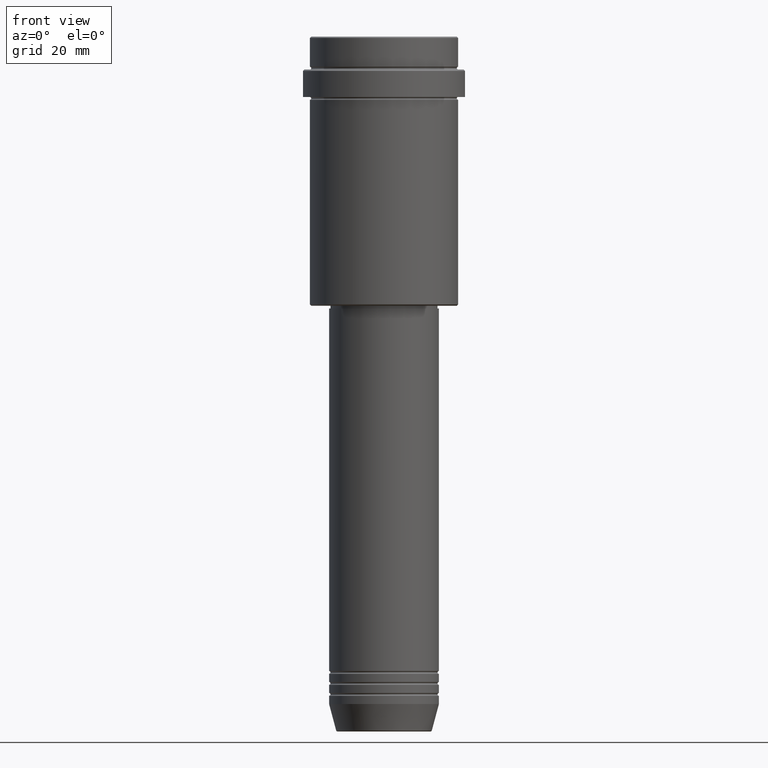
[diagram: clean part render]
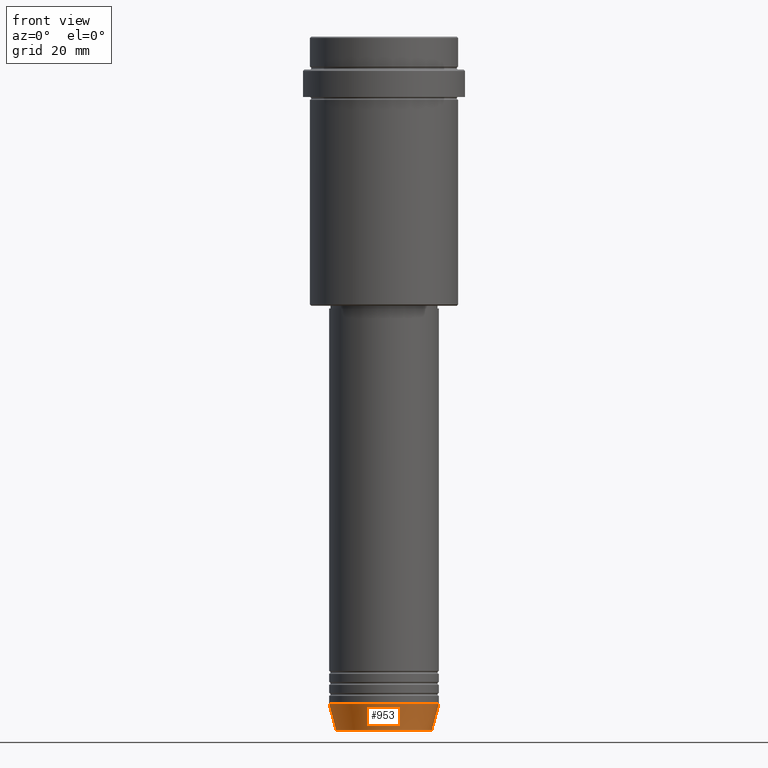
[diagram: same view with one face highlighted and labeled with its STEP entity id]
A machine part, front view. The second image highlights one B-rep face of the part: STEP entity #953.
In plain terms, the highlighted conical surface has half-angle 15 deg.
Its self-contained STEP definition (entity closure, byte-faithful):
#8 = CARTESIAN_POINT ( 'NONE',  ( -20.00000000000000000, 2.449293598294706513E-15, -243.0000000000000000 ) ) ;
#17 = ORIENTED_EDGE ( 'NONE', *, *, #999, .F. ) ;
#57 = CARTESIAN_POINT ( 'NONE',  ( -17.41980749484382329, 2.291302373663531915E-15, -252.6294095225512422 ) ) ;
#105 = ORIENTED_EDGE ( 'NONE', *, *, #194, .F. ) ;
#164 = CIRCLE ( 'NONE', #1089, 20.00000000000000000 ) ;
#182 = VECTOR ( 'NONE', #224, 1000.000000000000114 ) ;
#194 = EDGE_CURVE ( 'NONE', #1266, #1223, #164, .T. ) ;
#224 = DIRECTION ( 'NONE',  ( -0.2588190451025211836, 3.169619151431770488E-17, 0.9659258262890680902 ) ) ;
#304 = CARTESIAN_POINT ( 'NONE',  ( 0.000000000000000000, 0.000000000000000000, -243.0000000000000000 ) ) ;
#324 = DIRECTION ( 'NONE',  ( 0.2588190451025211836, 0.000000000000000000, 0.9659258262890680902 ) ) ;
#353 = AXIS2_PLACEMENT_3D ( 'NONE', #1215, #454, #1113 ) ;
#384 = ORIENTED_EDGE ( 'NONE', *, *, #1011, .T. ) ;
#420 = CARTESIAN_POINT ( 'NONE',  ( 17.41980749484382329, 0.000000000000000000, -252.6294095225512422 ) ) ;
#454 = DIRECTION ( 'NONE',  ( -0.000000000000000000, -0.000000000000000000, 1.000000000000000000 ) ) ;
#568 = CARTESIAN_POINT ( 'NONE',  ( 20.00000000000000000, 0.000000000000000000, -243.0000000000000000 ) ) ;
#609 = VERTEX_POINT ( 'NONE', #57 ) ;
#670 = AXIS2_PLACEMENT_3D ( 'NONE', #1072, #1169, #735 ) ;
#678 = LINE ( 'NONE', #8, #182 ) ;
#714 = VECTOR ( 'NONE', #324, 1000.000000000000114 ) ;
#735 = DIRECTION ( 'NONE',  ( 1.000000000000000000, 0.000000000000000000, 0.000000000000000000 ) ) ;
#751 = CARTESIAN_POINT ( 'NONE',  ( -20.00000000000000000, 2.449293598294706513E-15, -243.0000000000000000 ) ) ;
#874 = CARTESIAN_POINT ( 'NONE',  ( 20.00000000000000000, 0.000000000000000000, -243.0000000000000000 ) ) ;
#877 = ORIENTED_EDGE ( 'NONE', *, *, #882, .T. ) ;
#882 = EDGE_CURVE ( 'NONE', #609, #1297, #886, .T. ) ;
#886 = CIRCLE ( 'NONE', #670, 17.41980749484382329 ) ;
#953 = ADVANCED_FACE ( 'NONE', ( #1412 ), #1088, .T. ) ;
#993 = DIRECTION ( 'NONE',  ( 1.000000000000000000, 0.000000000000000000, 0.000000000000000000 ) ) ;
#999 = EDGE_CURVE ( 'NONE', #609, #1266, #678, .T. ) ;
#1011 = EDGE_CURVE ( 'NONE', #1297, #1223, #1330, .T. ) ;
#1072 = CARTESIAN_POINT ( 'NONE',  ( 0.000000000000000000, 0.000000000000000000, -252.6294095225512422 ) ) ;
#1088 = CONICAL_SURFACE ( 'NONE', #353, 20.00000000000000000, 0.2617993877991499074 ) ;
#1089 = AXIS2_PLACEMENT_3D ( 'NONE', #304, #1101, #993 ) ;
#1101 = DIRECTION ( 'NONE',  ( -0.000000000000000000, -0.000000000000000000, 1.000000000000000000 ) ) ;
#1113 = DIRECTION ( 'NONE',  ( 1.000000000000000000, 0.000000000000000000, 0.000000000000000000 ) ) ;
#1169 = DIRECTION ( 'NONE',  ( -0.000000000000000000, -0.000000000000000000, 1.000000000000000000 ) ) ;
#1215 = CARTESIAN_POINT ( 'NONE',  ( 0.000000000000000000, 0.000000000000000000, -243.0000000000000000 ) ) ;
#1223 = VERTEX_POINT ( 'NONE', #874 ) ;
#1266 = VERTEX_POINT ( 'NONE', #751 ) ;
#1297 = VERTEX_POINT ( 'NONE', #420 ) ;
#1327 = EDGE_LOOP ( 'NONE', ( #17, #877, #384, #105 ) ) ;
#1330 = LINE ( 'NONE', #568, #714 ) ;
#1412 = FACE_OUTER_BOUND ( 'NONE', #1327, .T. ) ;